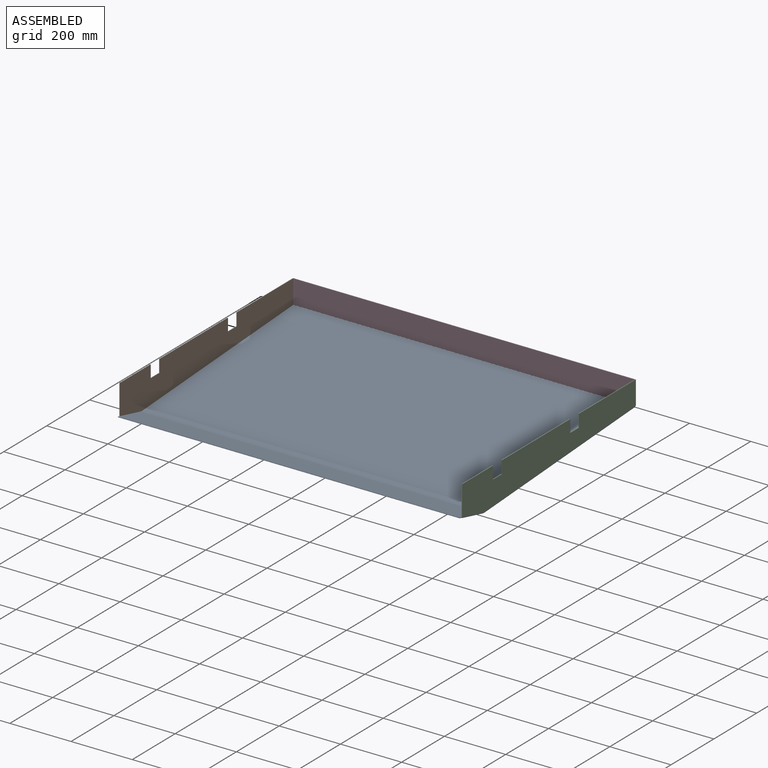
[diagram: assembled view]
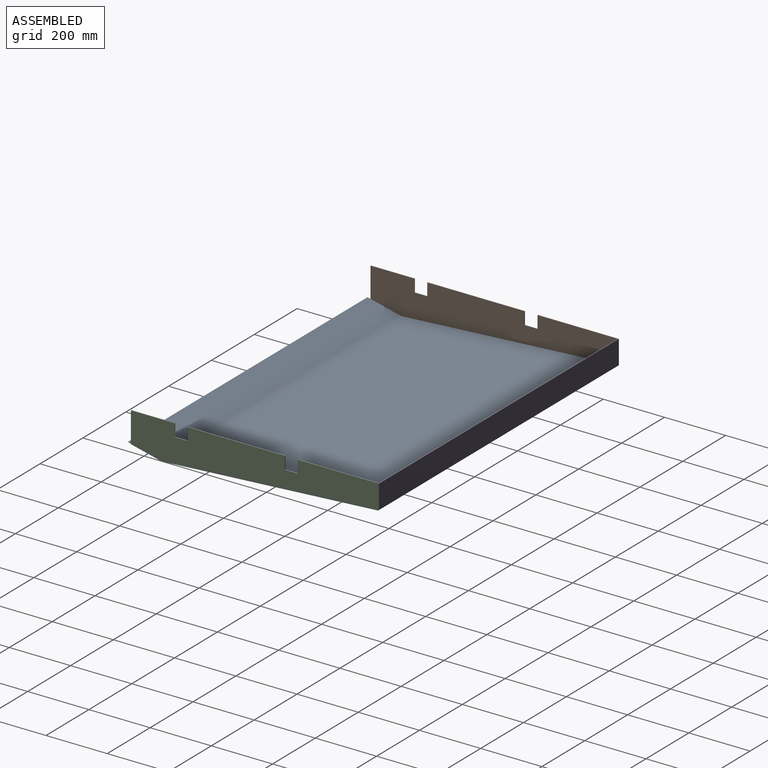
[diagram: assembled view, second angle]
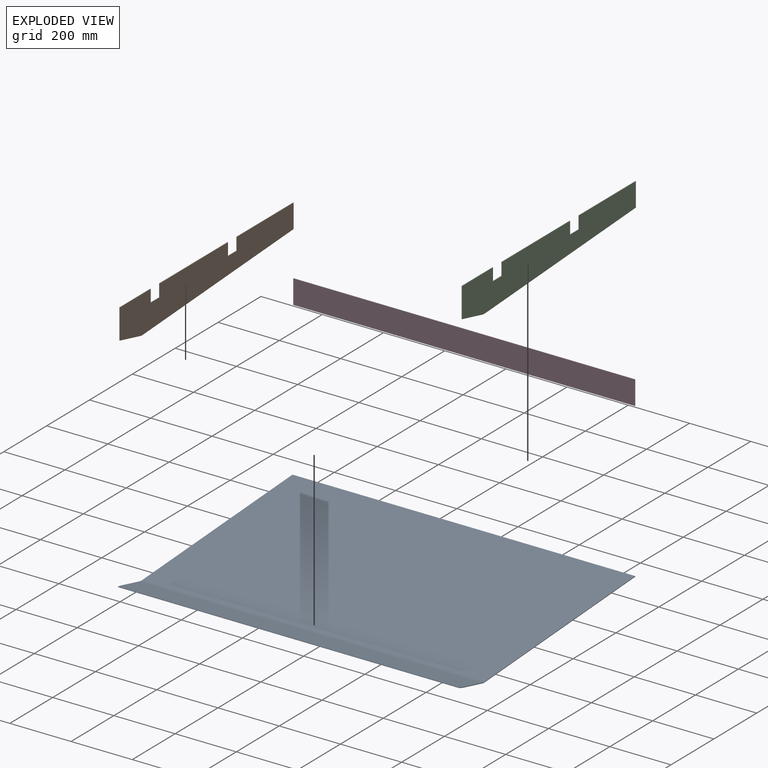
[diagram: exploded view]
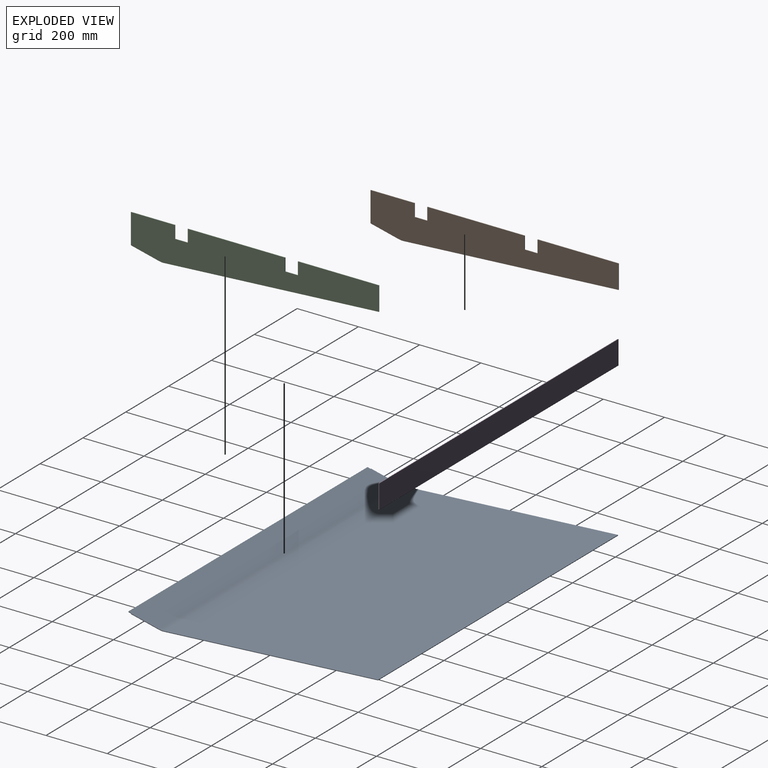
[diagram: exploded view, second angle]
ASSEMBLY  parts=4 mates=3
PART A: 24 faces, bbox 1120x817.8x45.5 mm
  f0: plane 2.02x1.94mm, normal (0,-0.97,0.23), area 4mm2, adj f1,f4,f5,f20
  f1: plane 93.18x24.2mm, normal (-1,0,0), area 190.7mm2, adj f0,f4,f5,f11
  f2: plane 93.18x24.2mm, normal (1,0,0), area 190.7mm2, adj f3,f4,f5,f12
  f3: plane 2.02x1.94mm, normal (0,-0.97,0.23), area 4mm2, adj f2,f4,f5,f21
  f4: plane 1120x92.71mm, normal (0,-0.23,-0.97), area 106789.3mm2, adj f0,f1,f2,f3,f13,f22
  f5: plane 1120x92.71mm, normal (0,0.23,0.97), area 106789.3mm2, adj f0,f1,f2,f3,f14,f23
  f6: plane 700.75x45.42mm, normal (-1,0,0), area 1403.9mm2, adj f7,f9,f10,f11
  f7: plane 1120x2mm, normal (0,1,0.06), area 2240mm2, adj f6,f8,f9,f10
  f8: plane 700.75x45.42mm, normal (1,0,0), area 1403.9mm2, adj f7,f9,f10,f12
  f9: plane 1120x700.63mm, normal (0,0.06,-1), area 786208.7mm2, adj f6,f7,f8,f13
  f10: plane 1120x700.63mm, normal (0,-0.06,1), area 786208.7mm2, adj f6,f7,f8,f14
  f11: plane 14.76x3.33mm, normal (-1,0,0), area 29.1mm2, adj f1,f6,f13,f14
  f12: plane 14.76x3.33mm, normal (1,0,0), area 29.1mm2, adj f2,f8,f13,f14
  f13: cylinder r=50mm len=1120mm, axis (-1,0,0), area 16656.5mm2, adj f4,f9,f11,f12
  f14: cylinder r=48mm len=1120mm, axis (-1,0,0), area 15990.2mm2, adj f5,f10,f11,f12
  f15: plane 1115.96x1.94mm, normal (0,-0.97,0.25), area 2231.9mm2, adj f16,f17,f18,f19
  f16: plane 10.16x4.44mm, normal (-1,0,0), area 20mm2, adj f15,f18,f19,f20
  f17: plane 10.16x4.44mm, normal (1,0,0), area 20mm2, adj f15,f18,f19,f21
  f18: plane 1115.96x9.66mm, normal (0,-0.25,-0.97), area 11139.1mm2, adj f15,f16,f17,f22
  f19: plane 1115.96x9.66mm, normal (0,0.25,0.97), area 11139.1mm2, adj f15,f16,f17,f23
  f20: plane 1.95x0.5mm, normal (-1,0,0), area 0mm2, adj f0,f16,f22,f23
  f21: plane 1.95x0.5mm, normal (1,0,0), area 0mm2, adj f3,f17,f22,f23
  f22: cylinder r=2.1mm len=1115.96mm, axis (-1,0,0), area 40.9mm2, adj f4,f18,f20,f21
  f23: cylinder r=0.1mm len=1115.96mm, axis (-1,0,0), area 1.9mm2, adj f5,f19,f20,f21
PART B: 16 faces, bbox 2x810x121.6 mm
  f0: plane 41x2mm, normal (0,-1,0), area 82mm2, adj f1,f13,f14,f15
  f1: plane 42x2mm, normal (0,0,1), area 84mm2, adj f0,f2,f14,f15
  f2: plane 41x2mm, normal (0,1,0), area 82mm2, adj f1,f3,f14,f15
  f3: plane 318x2mm, normal (0,0,1), area 636mm2, adj f2,f4,f14,f15
  f4: plane 41x2mm, normal (0,-1,0), area 82mm2, adj f3,f5,f14,f15
  f5: plane 42x2mm, normal (0,0,1), area 84mm2, adj f4,f6,f14,f15
  f6: plane 41x2mm, normal (0,1,0), area 82mm2, adj f5,f7,f14,f15
  f7: plane 143.5x2mm, normal (0,0,1), area 287mm2, adj f6,f8,f14,f15
  f8: plane 97.92x2mm, normal (0,-1,0), area 195.8mm2, adj f7,f9,f14,f15
  f9: plane 93.19x22.37mm, normal (0,-0.23,-0.97), area 191.7mm2, adj f8,f10,f14,f15
  f10: cylinder r=47.98mm len=14.17mm, axis (1,0,0), area 28.5mm2, adj f9,f11,f14,f15
  f11: plane 702.65x43.54mm, normal (0,0.06,-1), area 1408mm2, adj f10,f12,f14,f15
  f12: plane 77.98x2mm, normal (0,1,0), area 156mm2, adj f11,f13,f14,f15
  f13: plane 264.5x2mm, normal (0,0,1), area 529mm2, adj f0,f12,f14,f15
  f14: plane 810x121.61mm, normal (1,0,0), area 78528.8mm2, adj f0,f1,f2,f3,f4,f5,f6,f7
  f15: plane 810x121.61mm, normal (-1,0,0), area 78528.8mm2, adj f0,f1,f2,f3,f4,f5,f6,f7
PART C: same geometry as B
PART D: 6 faces, bbox 1116x2x78.1 mm
  f0: plane 1115.96x2mm, normal (0,0,-1), area 2231.9mm2, adj f1,f3,f4,f5
  f1: plane 78.1x2mm, normal (-1,0,0), area 156.2mm2, adj f0,f2,f4,f5
  f2: plane 1115.96x2mm, normal (0,0,1), area 2231.9mm2, adj f1,f3,f4,f5
  f3: plane 78.1x2mm, normal (1,0,0), area 156.2mm2, adj f0,f2,f4,f5
  f4: plane 1115.96x78.1mm, normal (0,1,0), area 87157.9mm2, adj f0,f1,f2,f3
  f5: plane 1115.96x78.1mm, normal (0,-1,0), area 87157.9mm2, adj f0,f1,f2,f3
PLACE A t=(-22,19.53,-731.94)mm
PLACE B t=(-1140,20,-732.08)mm
PLACE C t=(-22,20,-732.08)mm
PLACE D t=(-22.02,20,-732.08)mm
MATE fastened B.f9 <-> A.f5  axis (0,-0.23,-0.97) through (-2,0,0)mm
MATE fastened D.f4 <-> B.f12  axis (0,1,0) through (0,810,97.92)mm
MATE fastened A.f5 <-> C.f9  axis (0,0.23,0.97) through (1118,0,0)mm
